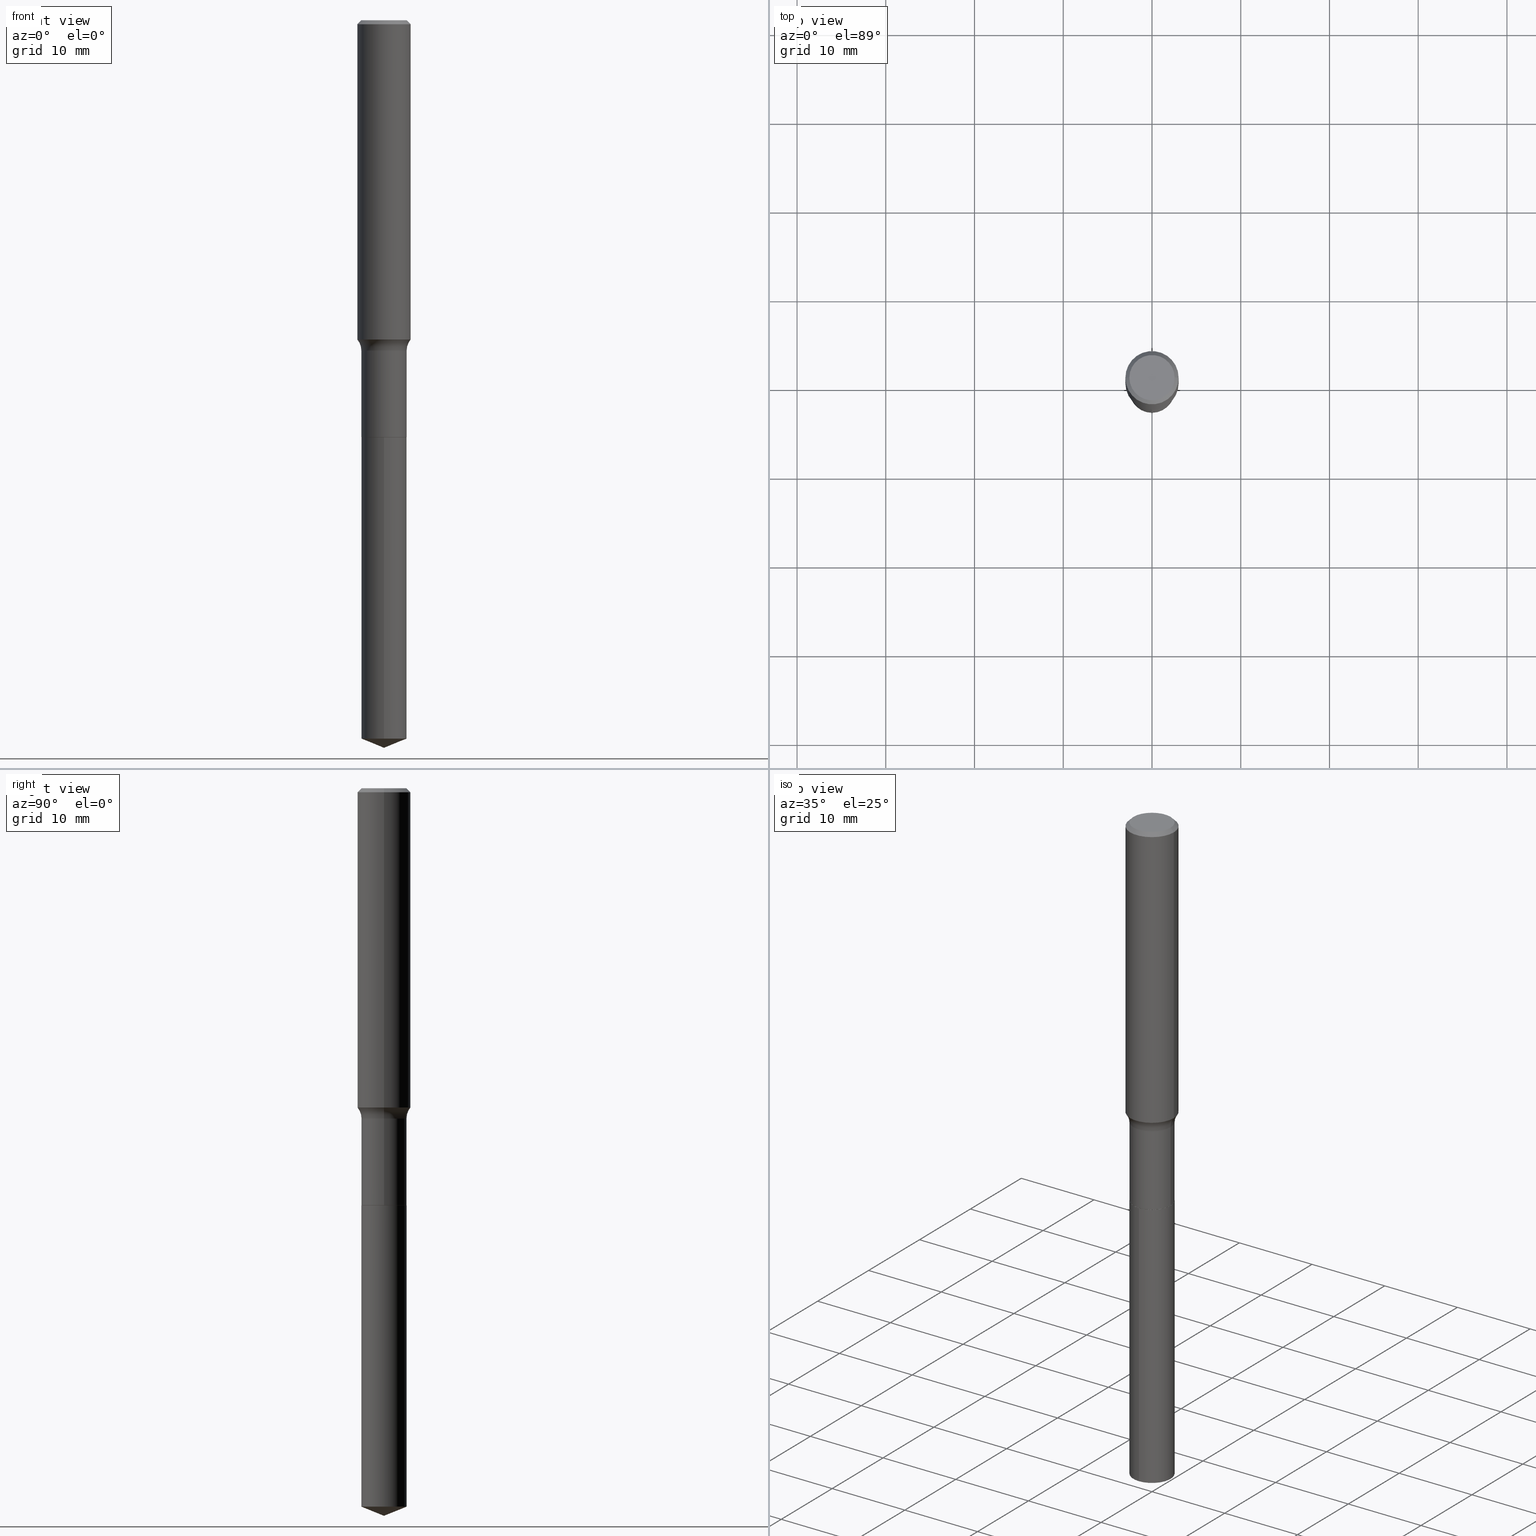
[diagram: canonical four-view strip — front | top / right | iso, engineering-drawing reading convention]
A machine part, canonical four-view strip (front | top / right | iso — engineering-drawing reading convention). The complete STEP part file that produces these views, byte-faithful:
ISO-10303-21;
HEADER;
FILE_DESCRIPTION (( 'STEP AP203' ),
    '1' );
FILE_NAME ('69244.STEP',
    '2024-04-19T17:29:57',
    ( '' ),
    ( '' ),
    'SwSTEP 2.0',
    'SolidWorks 2023',
    '' );
FILE_SCHEMA (( 'CONFIG_CONTROL_DESIGN' ));
ENDSEC;

DATA;
#1 = CONICAL_SURFACE ( 'NONE', #172, 0.09990000000000000269, 0.7853981633975336552 ) ;
#2 = FACE_OUTER_BOUND ( 'NONE', #245, .T. ) ;
#3 = CIRCLE ( 'NONE', #365, 0.1003999999999999893 ) ;
#4 = LOCAL_TIME ( 13, 29, 57.00000000000000000, #120 ) ;
#5 = VERTEX_POINT ( 'NONE', #77 ) ;
#6 = EDGE_CURVE ( 'NONE', #83, #490, #84, .T. ) ;
#7 = PRODUCT_RELATED_PRODUCT_CATEGORY ( 'detail', '', ( #463 ) ) ;
#8 = DIRECTION ( 'NONE',  ( -2.445461531359386965E-29, 3.491491756807676678E-15, 1.000000000000000000 ) ) ;
#10 = VERTEX_POINT ( 'NONE', #20 ) ;
#9 = CARTESIAN_POINT ( 'NONE',  ( 0.000000000000000000, 0.000000000000000000, 0.000000000000000000 ) ) ;
#11 = CARTESIAN_POINT ( 'NONE',  ( 5.011033706304132718E-46, -7.154428071060963220E-32, -2.049109640503330010E-17 ) ) ;
#12 = ADVANCED_BREP_SHAPE_REPRESENTATION ( '69244', ( #126, #462, #461 ), #295 ) ;
#13 = ADVANCED_FACE ( 'NONE', ( #269 ), #1, .T. ) ;
#14 = DIRECTION ( 'NONE',  ( -6.982962677686266711E-15, -1.000000000000000000, 5.441928274231599754E-15 ) ) ;
#15 = VECTOR ( 'NONE', #234, 39.37007874015748143 ) ;
#16 = AXIS2_PLACEMENT_3D ( 'NONE', #94, #34, #484 ) ;
#17 = CARTESIAN_POINT ( 'NONE',  ( -8.838404976398942388E-28, 1.261897892683881978E-13, 36.14207874015747990 ) ) ;
#18 = CARTESIAN_POINT ( 'NONE',  ( 4.524117291442502816E-29, -6.459240476859820373E-15, -1.850000000000000311 ) ) ;
#19 = CYLINDRICAL_SURFACE ( 'NONE', #415, 0.1004000000000000031 ) ;
#20 = CARTESIAN_POINT ( 'NONE',  ( -7.010894528396559145E-16, -0.1004000000000064563, -1.849999999999999867 ) ) ;
#21 = ADVANCED_FACE ( 'NONE', ( #309 ), #158, .F. ) ;
#22 = APPROVAL_STATUS ( 'not_yet_approved' ) ;
#23 = ORIENTED_EDGE ( 'NONE', *, *, #71, .F. ) ;
#24 = CARTESIAN_POINT ( 'NONE',  ( 4.332147990156998495E-31, -6.185159191760672860E-17, -0.01771500000000011607 ) ) ;
#25 = APPROVAL_STATUS ( 'not_yet_approved' ) ;
#26 = CARTESIAN_POINT ( 'NONE',  ( 4.524117291442502816E-29, -6.459240476859820373E-15, -1.850000000000000311 ) ) ;
#27 = CARTESIAN_POINT ( 'NONE',  ( -0.1003999999999999615, -5.074443708697142375E-15, -1.465899999999999981 ) ) ;
#28 = ORIENTED_EDGE ( 'NONE', *, *, #348, .F. ) ;
#29 = CARTESIAN_POINT ( 'NONE',  ( 0.1180999999999999966, -8.865394841523548556E-16, -0.01771500000000011607 ) ) ;
#30 = CC_DESIGN_PERSON_AND_ORGANIZATION_ASSIGNMENT ( #140, #259, ( #463 ) ) ;
#31 = CARTESIAN_POINT ( 'NONE',  ( -0.1003999999999999893, -5.074443708697142375E-15, -1.849500000000000366 ) ) ;
#32 = CC_DESIGN_SECURITY_CLASSIFICATION ( #176, ( #470 ) ) ;
#33 = ORIENTED_EDGE ( 'NONE', *, *, #141, .F. ) ;
#34 = DIRECTION ( 'NONE',  ( -2.445468806185136597E-29, 3.491481338843145583E-15, 1.000000000000000000 ) ) ;
#36 = ORIENTED_EDGE ( 'NONE', *, *, #92, .F. ) ;
#35 = DIRECTION ( 'NONE',  ( 1.000000000000000000, -6.982962677686265922E-15, 4.876176775795935793E-29 ) ) ;
#37 = DIRECTION ( 'NONE',  ( -6.982962677686266711E-15, -1.000000000000000000, 3.498761904101788509E-15 ) ) ;
#38 = CONICAL_SURFACE ( 'NONE', #45, 97.44436430772951496, 1.186823891356148852 ) ;
#39 = ADVANCED_FACE ( 'NONE', ( #427 ), #38, .T. ) ;
#40 = CIRCLE ( 'NONE', #344, 0.07799999999999999989 ) ;
#41 = CYLINDRICAL_SURFACE ( 'NONE', #305, 0.1003999999999999754 ) ;
#42 = EDGE_LOOP ( 'NONE', ( #278, #400, #23, #358 ) ) ;
#43 = DIRECTION ( 'NONE',  ( 1.000000000000000000, -6.982962677686265133E-15, 0.000000000000000000 ) ) ;
#44 = DIRECTION ( 'NONE',  ( 1.000000000000000000, -6.982962677686266711E-15, 4.875668750515085695E-29 ) ) ;
#45 = AXIS2_PLACEMENT_3D ( 'NONE', #17, #267, #468 ) ;
#46 = AXIS2_PLACEMENT_3D ( 'NONE', #101, #382, #154 ) ;
#47 = DIRECTION ( 'NONE',  ( -2.445468806185136597E-29, 3.491481338843145583E-15, 1.000000000000000000 ) ) ;
#48 = EDGE_CURVE ( 'NONE', #239, #183, #388, .T. ) ;
#49 = AXIS2_PLACEMENT_3D ( 'NONE', #397, #60, #240 ) ;
#50 = DIRECTION ( 'NONE',  ( 1.000000000000000000, -6.982962677686270655E-15, 0.000000000000000000 ) ) ;
#51 = DIRECTION ( 'NONE',  ( -0.7071067811866078578, 7.493145998870571886E-15, 0.7071067811864871766 ) ) ;
#52 = VERTEX_POINT ( 'NONE', #394 ) ;
#53 = EDGE_CURVE ( 'NONE', #183, #325, #300, .T. ) ;
#54 = DATE_AND_TIME ( #244, #109 ) ;
#55 = EDGE_LOOP ( 'NONE', ( #236, #431, #410, #330 ) ) ;
#56 = DIRECTION ( 'NONE',  ( -2.445461531359386965E-29, 3.491491756807676678E-15, 1.000000000000000000 ) ) ;
#57 = CIRCLE ( 'NONE', #375, 0.1003999999999999893 ) ;
#58 = AXIS2_PLACEMENT_3D ( 'NONE', #26, #279, #435 ) ;
#59 = DATE_AND_TIME ( #352, #145 ) ;
#60 = DIRECTION ( 'NONE',  ( -2.445468806185136597E-29, 3.491481338843145583E-15, 1.000000000000000000 ) ) ;
#61 = PERSON_AND_ORGANIZATION ( #458, #115 ) ;
#62 = ORIENTED_EDGE ( 'NONE', *, *, #348, .T. ) ;
#63 = DIRECTION ( 'NONE',  ( 0.7071067811866078578, -2.468850131082888544E-15, 0.7071067811864871766 ) ) ;
#64 = ORIENTED_EDGE ( 'NONE', *, *, #156, .T. ) ;
#65 = DIRECTION ( 'NONE',  ( 6.588037525764800757E-15, 0.9271838545667904219, 0.3746065934159043542 ) ) ;
#66 = CONICAL_SURFACE ( 'NONE', #241, 0.09990000000000000269, 0.7853981633975336552 ) ;
#67 = DIRECTION ( 'NONE',  ( 1.000000000000000000, -6.982962677686266711E-15, 0.000000000000000000 ) ) ;
#68 = ORIENTED_EDGE ( 'NONE', *, *, #102, .T. ) ;
#69 = CARTESIAN_POINT ( 'NONE',  ( 7.133849067031857711E-16, 0.1003999999999935500, -1.850000000000000533 ) ) ;
#70 = LINE ( 'NONE', #104, #225 ) ;
#71 = EDGE_CURVE ( 'NONE', #275, #490, #57, .T. ) ;
#72 = EDGE_LOOP ( 'NONE', ( #440, #75, #206, #331 ) ) ;
#73 = AXIS2_PLACEMENT_3D ( 'NONE', #314, #112, #424 ) ;
#74 = VECTOR ( 'NONE', #88, 39.37007874015748143 ) ;
#75 = ORIENTED_EDGE ( 'NONE', *, *, #467, .F. ) ;
#76 = CARTESIAN_POINT ( 'NONE',  ( 0.1003999999999999615, -5.819251947449867977E-15, -1.465899999999999981 ) ) ;
#77 = CARTESIAN_POINT ( 'NONE',  ( 0.09990000000000000269, -7.156838448360678443E-15, -1.850000000000000311 ) ) ;
#78 = EDGE_CURVE ( 'NONE', #293, #239, #280, .T. ) ;
#79 = CC_DESIGN_PERSON_AND_ORGANIZATION_ASSIGNMENT ( #404, #355, ( #470 ) ) ;
#80 = AXIS2_PLACEMENT_3D ( 'NONE', #466, #118, #465 ) ;
#81 = CONICAL_SURFACE ( 'NONE', #422, 0.1180999999999999966, 0.7853981633974452814 ) ;
#82 = DATE_AND_TIME ( #360, #4 ) ;
#83 = VERTEX_POINT ( 'NONE', #203 ) ;
#84 = LINE ( 'NONE', #353, #420 ) ;
#85 = ADVANCED_FACE ( 'NONE', ( #272 ), #19, .T. ) ;
#86 = DIRECTION ( 'NONE',  ( 1.000000000000000000, -6.982962677686265133E-15, 0.000000000000000000 ) ) ;
#87 = APPROVAL_ROLE ( '' ) ;
#88 = DIRECTION ( 'NONE',  ( -2.445468806185136877E-29, 3.491481338843145188E-15, 1.000000000000000000 ) ) ;
#89 = CC_DESIGN_DATE_AND_TIME_ASSIGNMENT ( #122, #407, ( #343 ) ) ;
#90 = EDGE_LOOP ( 'NONE', ( #478, #33 ) ) ;
#91 = CARTESIAN_POINT ( 'NONE',  ( 7.794765010124543835E-29, -1.112888643234222814E-14, -3.187435766926150826 ) ) ;
#92 = EDGE_CURVE ( 'NONE', #239, #285, #322, .T. ) ;
#93 = ORIENTED_EDGE ( 'NONE', *, *, #185, .T. ) ;
#94 = CARTESIAN_POINT ( 'NONE',  ( 3.584812722986791865E-29, -5.118162494610166900E-15, -1.465899999999999981 ) ) ;
#95 = DIRECTION ( 'NONE',  ( -2.445468806185136597E-29, 3.491481338843145583E-15, 1.000000000000000000 ) ) ;
#96 = EDGE_LOOP ( 'NONE', ( #263, #123, #28 ) ) ;
#97 = DIRECTION ( 'NONE',  ( 1.000000000000000000, -6.982962677686263555E-15, 0.000000000000000000 ) ) ;
#98 = APPROVAL_PERSON_ORGANIZATION ( #202, #416, #475 ) ;
#99 = DIRECTION ( 'NONE',  ( -2.445468806185136597E-29, 3.491481338843145583E-15, 1.000000000000000000 ) ) ;
#100 = EDGE_CURVE ( 'NONE', #285, #378, #132, .T. ) ;
#101 = CARTESIAN_POINT ( 'NONE',  ( 4.332147990156998495E-31, -6.185159191760672860E-17, -0.01771500000000011607 ) ) ;
#102 = EDGE_CURVE ( 'NONE', #408, #10, #390, .T. ) ;
#103 = EDGE_CURVE ( 'NONE', #356, #393, #389, .T. ) ;
#105 = ORIENTED_EDGE ( 'NONE', *, *, #100, .T. ) ;
#104 = CARTESIAN_POINT ( 'NONE',  ( -0.1003999999999999754, 7.133849067031404116E-16, -4.938610830615923592E-30 ) ) ;
#106 = FACE_OUTER_BOUND ( 'NONE', #257, .T. ) ;
#107 = ORIENTED_EDGE ( 'NONE', *, *, #185, .F. ) ;
#108 = AXIS2_PLACEMENT_3D ( 'NONE', #231, #429, #50 ) ;
#109 = LOCAL_TIME ( 13, 29, 57.00000000000000000, #395 ) ;
#110 = EDGE_CURVE ( 'NONE', #393, #408, #370, .T. ) ;
#111 = EDGE_CURVE ( 'NONE', #275, #285, #173, .T. ) ;
#112 = DIRECTION ( 'NONE',  ( -2.445468806185136597E-29, 3.491481338843145583E-15, 1.000000000000000000 ) ) ;
#113 = DIRECTION ( 'NONE',  ( 2.438088387897960049E-29, -3.491481338843145188E-15, -1.000000000000000000 ) ) ;
#114 = AXIS2_PLACEMENT_3D ( 'NONE', #282, #166, #276 ) ;
#115 = ORGANIZATION ( 'UNSPECIFIED', 'UNSPECIFIED', '' ) ;
#116 = ADVANCED_FACE ( 'NONE', ( #220 ), #143, .F. ) ;
#117 = DIRECTION ( 'NONE',  ( 1.000000000000000000, -6.982962677686263555E-15, 0.000000000000000000 ) ) ;
#118 = DIRECTION ( 'NONE',  ( -2.445468806185136597E-29, 3.491481338843145583E-15, 1.000000000000000000 ) ) ;
#119 = APPLICATION_CONTEXT ( 'configuration controlled 3d designs of mechanical parts and assemblies' ) ;
#120 = COORDINATED_UNIVERSAL_TIME_OFFSET ( 5, 0, .BEHIND. ) ;
#121 = AXIS2_PLACEMENT_3D ( 'NONE', #425, #113, #383 ) ;
#122 = DATE_AND_TIME ( #167, #152 ) ;
#123 = ORIENTED_EDGE ( 'NONE', *, *, #454, .T. ) ;
#124 = ADVANCED_FACE ( 'NONE', ( #317 ), #125, .T. ) ;
#125 = CYLINDRICAL_SURFACE ( 'NONE', #49, 0.1181000000000001077 ) ;
#126 = MANIFOLD_SOLID_BREP ( 'Body-Move/Copy2[1]', #252 ) ;
#127 = ORIENTED_EDGE ( 'NONE', *, *, #111, .T. ) ;
#128 = CARTESIAN_POINT ( 'NONE',  ( 4.524117291442502816E-29, -6.459240476859820373E-15, -1.850000000000000311 ) ) ;
#129 = APPROVAL_DATE_TIME ( #205, #416 ) ;
#130 = EDGE_LOOP ( 'NONE', ( #319, #313 ) ) ;
#131 = DIRECTION ( 'NONE',  ( -2.445468806185136877E-29, 3.491481338843145188E-15, 1.000000000000000000 ) ) ;
#132 = CIRCLE ( 'NONE', #199, 0.1003999999999999615 ) ;
#133 = AXIS2_PLACEMENT_3D ( 'NONE', #485, #146, #406 ) ;
#134 = CARTESIAN_POINT ( 'NONE',  ( 3.463819832877476296E-29, -4.945416713972557188E-15, -1.416423642009541295 ) ) ;
#135 = ORIENTED_EDGE ( 'NONE', *, *, #195, .F. ) ;
#136 = FACE_OUTER_BOUND ( 'NONE', #72, .T. ) ;
#137 = DIRECTION ( 'NONE',  ( 1.000000000000000000, -6.982962677686268288E-15, 0.000000000000000000 ) ) ;
#138 = EDGE_LOOP ( 'NONE', ( #434, #93, #299, #165 ) ) ;
#139 = LINE ( 'NONE', #444, #74 ) ;
#140 = PERSON_AND_ORGANIZATION ( #458, #115 ) ;
#141 = EDGE_CURVE ( 'NONE', #83, #5, #417, .T. ) ;
#142 = CARTESIAN_POINT ( 'NONE',  ( 0.1003850000000000159, -7.803837484803599345E-16, -2.049109640502812012E-17 ) ) ;
#143 = TOROIDAL_SURFACE ( 'NONE', #16, 0.1783999999999999198, 0.07799999999999999989 ) ;
#144 = PLANE ( 'NONE',  #175 ) ;
#145 = LOCAL_TIME ( 13, 29, 57.00000000000000000, #399 ) ;
#146 = DIRECTION ( 'NONE',  ( -2.445461531359386965E-29, 3.491491756807676678E-15, 1.000000000000000000 ) ) ;
#147 = CARTESIAN_POINT ( 'NONE',  ( 7.893949823228101687E-29, -1.127053539097518232E-14, -3.228000000000000203 ) ) ;
#148 = CARTESIAN_POINT ( 'NONE',  ( 3.584812722986791865E-29, -5.118162494610166900E-15, -1.465899999999999981 ) ) ;
#150 = EDGE_LOOP ( 'NONE', ( #450, #366, #260, #105 ) ) ;
#149 = APPLICATION_PROTOCOL_DEFINITION ( 'international standard', 'config_control_design', 1994, #402 ) ;
#151 = AXIS2_PLACEMENT_3D ( 'NONE', #11, #380, #44 ) ;
#152 = LOCAL_TIME ( 13, 29, 57.00000000000000000, #235 ) ;
#153 = DIRECTION ( 'NONE',  ( 1.000000000000000000, -6.982962677686266711E-15, 4.876176775795935232E-29 ) ) ;
#154 = DIRECTION ( 'NONE',  ( -1.000000000000000000, 6.982962677686266711E-15, 0.000000000000000000 ) ) ;
#155 = DIRECTION ( 'NONE',  ( -2.445468806185136597E-29, 3.491481338843145583E-15, 1.000000000000000000 ) ) ;
#156 = EDGE_CURVE ( 'NONE', #242, #183, #361, .T. ) ;
#157 = CARTESIAN_POINT ( 'NONE',  ( -7.010894528396231768E-16, -0.1004000000000111331, -3.187435766926150382 ) ) ;
#158 = TOROIDAL_SURFACE ( 'NONE', #261, 0.1783999999999999198, 0.07799999999999999989 ) ;
#159 = CIRCLE ( 'NONE', #271, 0.1180999999999999966 ) ;
#160 = DIRECTION ( 'NONE',  ( -2.445468806185136597E-29, 3.491481338843145583E-15, 1.000000000000000000 ) ) ;
#161 = VECTOR ( 'NONE', #371, 39.37007874015748143 ) ;
#162 = ORIENTED_EDGE ( 'NONE', *, *, #373, .T. ) ;
#163 = ADVANCED_FACE ( 'NONE', ( #209 ), #438, .T. ) ;
#164 = PERSON_AND_ORGANIZATION ( #458, #115 ) ;
#165 = ORIENTED_EDGE ( 'NONE', *, *, #48, .F. ) ;
#166 = DIRECTION ( 'NONE',  ( -2.445468806185136597E-29, 3.491481338843145583E-15, 1.000000000000000000 ) ) ;
#167 = CALENDAR_DATE ( 2024, 19, 4 ) ;
#168 = LINE ( 'NONE', #432, #376 ) ;
#169 = ADVANCED_FACE ( 'NONE', ( #136 ), #81, .T. ) ;
#170 = PLANE ( 'NONE',  #464 ) ;
#171 = ORIENTED_EDGE ( 'NONE', *, *, #258, .T. ) ;
#172 = AXIS2_PLACEMENT_3D ( 'NONE', #237, #160, #307 ) ;
#173 = LINE ( 'NONE', #409, #262 ) ;
#174 = AXIS2_PLACEMENT_3D ( 'NONE', #186, #286, #327 ) ;
#175 = AXIS2_PLACEMENT_3D ( 'NONE', #336, #329, #35 ) ;
#176 = SECURITY_CLASSIFICATION ( '', '', #430 ) ;
#177 = LINE ( 'NONE', #339, #189 ) ;
#179 = ORIENTED_EDGE ( 'NONE', *, *, #6, .F. ) ;
#178 = APPLICATION_PROTOCOL_DEFINITION ( 'international standard', 'config_control_design', 1994, #119 ) ;
#180 = ORIENTED_EDGE ( 'NONE', *, *, #454, .F. ) ;
#181 = DIRECTION ( 'NONE',  ( 0.7071067811865453523, -7.319954787623248157E-15, -0.7071067811865496822 ) ) ;
#182 = ADVANCED_FACE ( 'NONE', ( #213 ), #66, .T. ) ;
#183 = VERTEX_POINT ( 'NONE', #29 ) ;
#184 = EDGE_CURVE ( 'NONE', #5, #83, #460, .T. ) ;
#185 = EDGE_CURVE ( 'NONE', #293, #325, #139, .T. ) ;
#186 = CARTESIAN_POINT ( 'NONE',  ( 4.524117291442502816E-29, -6.459240476859820373E-15, -1.850000000000000311 ) ) ;
#187 = CARTESIAN_POINT ( 'NONE',  ( 7.133849067032188047E-16, 0.1003999999999935500, -1.850000000000000533 ) ) ;
#188 = ORIENTED_EDGE ( 'NONE', *, *, #141, .T. ) ;
#189 = VECTOR ( 'NONE', #445, 39.37007874015748143 ) ;
#190 = DIRECTION ( 'NONE',  ( 1.000000000000000000, 0.000000000000000000, 0.000000000000000000 ) ) ;
#191 = EDGE_CURVE ( 'NONE', #5, #275, #332, .T. ) ;
#192 = FACE_OUTER_BOUND ( 'NONE', #289, .T. ) ;
#193 = CARTESIAN_POINT ( 'NONE',  ( 0.000000000000000000, 0.000000000000000000, 0.000000000000000000 ) ) ;
#194 = VECTOR ( 'NONE', #216, 39.37007874015748143 ) ;
#195 = EDGE_CURVE ( 'NONE', #476, #325, #401, .T. ) ;
#196 = EDGE_CURVE ( 'NONE', #52, #393, #168, .T. ) ;
#197 = FACE_OUTER_BOUND ( 'NONE', #55, .T. ) ;
#198 = DIRECTION ( 'NONE',  ( 1.000000000000000000, -6.982962677686265922E-15, 4.883557194083112901E-29 ) ) ;
#199 = AXIS2_PLACEMENT_3D ( 'NONE', #201, #351, #86 ) ;
#200 = AXIS2_PLACEMENT_3D ( 'NONE', #447, #56, #37 ) ;
#201 = CARTESIAN_POINT ( 'NONE',  ( 3.584812722986791865E-29, -5.118162494610166900E-15, -1.465899999999999981 ) ) ;
#202 = PERSON_AND_ORGANIZATION ( #458, #115 ) ;
#203 = CARTESIAN_POINT ( 'NONE',  ( -0.09990000000000000269, -5.746759056661369166E-15, -1.850000000000000311 ) ) ;
#204 = CC_DESIGN_PERSON_AND_ORGANIZATION_ASSIGNMENT ( #238, #277, ( #176 ) ) ;
#205 = DATE_AND_TIME ( #312, #311 ) ;
#206 = ORIENTED_EDGE ( 'NONE', *, *, #195, .T. ) ;
#207 = CONICAL_SURFACE ( 'NONE', #46, 0.1180999999999999966, 0.7853981633974452814 ) ;
#208 = CC_DESIGN_APPROVAL ( #250, ( #343 ) ) ;
#209 = FACE_OUTER_BOUND ( 'NONE', #96, .T. ) ;
#210 = SHAPE_DEFINITION_REPRESENTATION ( #303, #12 ) ;
#211 = ORIENTED_EDGE ( 'NONE', *, *, #102, .F. ) ;
#212 = EDGE_CURVE ( 'NONE', #10, #408, #459, .T. ) ;
#213 = FACE_OUTER_BOUND ( 'NONE', #248, .T. ) ;
#214 = APPROVAL_DATE_TIME ( #59, #298 ) ;
#215 = ORIENTED_EDGE ( 'NONE', *, *, #103, .T. ) ;
#216 = DIRECTION ( 'NONE',  ( -0.7071067811865453523, 2.468850131082234184E-15, -0.7071067811865496822 ) ) ;
#217 = ORIENTED_EDGE ( 'NONE', *, *, #212, .T. ) ;
#218 = DIRECTION ( 'NONE',  ( -2.445461531359386965E-29, 3.491491756807676678E-15, 1.000000000000000000 ) ) ;
#219 = AXIS2_PLACEMENT_3D ( 'NONE', #320, #218, #367 ) ;
#220 = FACE_OUTER_BOUND ( 'NONE', #341, .T. ) ;
#221 = FACE_OUTER_BOUND ( 'NONE', #90, .T. ) ;
#223 = ORIENTED_EDGE ( 'NONE', *, *, #226, .F. ) ;
#222 = CYLINDRICAL_SURFACE ( 'NONE', #133, 0.1004000000000000031 ) ;
#224 = ORIENTED_EDGE ( 'NONE', *, *, #384, .F. ) ;
#225 = VECTOR ( 'NONE', #412, 39.37007874015748143 ) ;
#226 = EDGE_CURVE ( 'NONE', #490, #275, #3, .T. ) ;
#227 = DESIGN_CONTEXT ( 'detailed design', #402, 'design' ) ;
#228 = CARTESIAN_POINT ( 'NONE',  ( 0.000000000000000000, 0.000000000000000000, 0.000000000000000000 ) ) ;
#229 = CARTESIAN_POINT ( 'NONE',  ( -0.1180999999999999966, -1.664483182012402116E-15, -0.01771500000000011607 ) ) ;
#230 = AXIS2_PLACEMENT_3D ( 'NONE', #335, #291, #448 ) ;
#231 = CARTESIAN_POINT ( 'NONE',  ( 0.1783999999999999198, -6.363923036309396812E-15, -1.465899999999999981 ) ) ;
#232 = AXIS2_PLACEMENT_3D ( 'NONE', #228, #302, #264 ) ;
#233 = APPROVAL_PERSON_ORGANIZATION ( #61, #298, #87 ) ;
#234 = DIRECTION ( 'NONE',  ( -2.445468806185136877E-29, 3.491481338843145188E-15, 1.000000000000000000 ) ) ;
#235 = COORDINATED_UNIVERSAL_TIME_OFFSET ( 5, 0, .BEHIND. ) ;
#236 = ORIENTED_EDGE ( 'NONE', *, *, #71, .T. ) ;
#237 = CARTESIAN_POINT ( 'NONE',  ( 4.524117291442502816E-29, -6.459240476859820373E-15, -1.850000000000000311 ) ) ;
#238 = PERSON_AND_ORGANIZATION ( #458, #115 ) ;
#239 = VERTEX_POINT ( 'NONE', #253 ) ;
#240 = DIRECTION ( 'NONE',  ( 1.000000000000000000, -6.982962677686266711E-15, 4.876176775795935793E-29 ) ) ;
#241 = AXIS2_PLACEMENT_3D ( 'NONE', #128, #246, #473 ) ;
#242 = VERTEX_POINT ( 'NONE', #142 ) ;
#243 = CARTESIAN_POINT ( 'NONE',  ( 0.09990000000000000269, -7.156838448360678443E-15, -1.850000000000000311 ) ) ;
#244 = CALENDAR_DATE ( 2024, 19, 4 ) ;
#245 = EDGE_LOOP ( 'NONE', ( #453, #62, #418, #211 ) ) ;
#246 = DIRECTION ( 'NONE',  ( -2.445468806185136597E-29, 3.491481338843145583E-15, 1.000000000000000000 ) ) ;
#247 = PERSON_AND_ORGANIZATION_ROLE ( 'creator' ) ;
#248 = EDGE_LOOP ( 'NONE', ( #179, #188, #372, #223 ) ) ;
#249 = DIRECTION ( 'NONE',  ( 2.445468806185136597E-29, -3.491481338843145583E-15, -1.000000000000000000 ) ) ;
#250 = APPROVAL ( #22, 'UNSPECIFIED' ) ;
#251 =( NAMED_UNIT ( * ) PLANE_ANGLE_UNIT ( ) SI_UNIT ( $, .RADIAN. ) );
#252 = CLOSED_SHELL ( 'NONE', ( #85, #39, #163, #474, #386 ) ) ;
#253 = CARTESIAN_POINT ( 'NONE',  ( 0.1181000000000002187, -5.770104606207307029E-15, -1.416423642009541295 ) ) ;
#254 = AXIS2_PLACEMENT_3D ( 'NONE', #134, #283, #137 ) ;
#255 = EDGE_LOOP ( 'NONE', ( #288, #64, #316, #135 ) ) ;
#257 = EDGE_LOOP ( 'NONE', ( #217, #68 ) ) ;
#256 = DIRECTION ( 'NONE',  ( 1.000000000000000000, -6.982962677686266711E-15, 4.875668750515085695E-29 ) ) ;
#258 = EDGE_CURVE ( 'NONE', #293, #378, #40, .T. ) ;
#260 = ORIENTED_EDGE ( 'NONE', *, *, #92, .T. ) ;
#259 = PERSON_AND_ORGANIZATION_ROLE ( 'design_owner' ) ;
#261 = AXIS2_PLACEMENT_3D ( 'NONE', #265, #155, #198 ) ;
#262 = VECTOR ( 'NONE', #131, 39.37007874015748143 ) ;
#263 = ORIENTED_EDGE ( 'NONE', *, *, #196, .F. ) ;
#264 = DIRECTION ( 'NONE',  ( 1.000000000000000000, -6.982962677686266711E-15, 4.876176775795935793E-29 ) ) ;
#265 = CARTESIAN_POINT ( 'NONE',  ( 3.584812722986791865E-29, -5.118162494610166900E-15, -1.465899999999999981 ) ) ;
#266 = CIRCLE ( 'NONE', #151, 0.1003850000000000159 ) ;
#267 = DIRECTION ( 'NONE',  ( -2.445461531359386965E-29, 3.491491756807676678E-15, 1.000000000000000000 ) ) ;
#268 = CYLINDRICAL_SURFACE ( 'NONE', #232, 0.1181000000000001077 ) ;
#269 = FACE_OUTER_BOUND ( 'NONE', #42, .T. ) ;
#270 = ADVANCED_FACE ( 'NONE', ( #491 ), #207, .T. ) ;
#271 = AXIS2_PLACEMENT_3D ( 'NONE', #333, #95, #67 ) ;
#272 = FACE_OUTER_BOUND ( 'NONE', #340, .T. ) ;
#273 = ADVANCED_FACE ( 'NONE', ( #192 ), #268, .T. ) ;
#274 = PERSON_AND_ORGANIZATION ( #458, #115 ) ;
#275 = VERTEX_POINT ( 'NONE', #381 ) ;
#276 = DIRECTION ( 'NONE',  ( 1.000000000000000000, -6.982962677686267499E-15, 0.000000000000000000 ) ) ;
#277 = PERSON_AND_ORGANIZATION_ROLE ( 'classification_officer' ) ;
#278 = ORIENTED_EDGE ( 'NONE', *, *, #184, .T. ) ;
#279 = DIRECTION ( 'NONE',  ( -2.445468806185136597E-29, 3.491481338843145583E-15, 1.000000000000000000 ) ) ;
#280 = CIRCLE ( 'NONE', #73, 0.1181000000000002048 ) ;
#281 = VECTOR ( 'NONE', #405, 39.37007874015748143 ) ;
#282 = CARTESIAN_POINT ( 'NONE',  ( 4.524117291442502816E-29, -6.459240476859820373E-15, -1.850000000000000311 ) ) ;
#283 = DIRECTION ( 'NONE',  ( -2.445468806185136597E-29, 3.491481338843145583E-15, 1.000000000000000000 ) ) ;
#284 = ADVANCED_FACE ( 'NONE', ( #301 ), #423, .F. ) ;
#285 = VERTEX_POINT ( 'NONE', #76 ) ;
#286 = DIRECTION ( 'NONE',  ( -2.445461531359386965E-29, 3.491491756807676678E-15, 1.000000000000000000 ) ) ;
#287 = DIRECTION ( 'NONE',  ( 6.982962677686265922E-15, 1.000000000000000000, -3.491491756807676678E-15 ) ) ;
#288 = ORIENTED_EDGE ( 'NONE', *, *, #297, .F. ) ;
#289 = EDGE_LOOP ( 'NONE', ( #107, #487, #337, #369 ) ) ;
#290 = DIRECTION ( 'NONE',  ( -2.445468806185136597E-29, 3.491481338843145583E-15, 1.000000000000000000 ) ) ;
#291 = DIRECTION ( 'NONE',  ( -2.445468806185136597E-29, 3.491481338843145583E-15, 1.000000000000000000 ) ) ;
#293 = VERTEX_POINT ( 'NONE', #342 ) ;
#292 = LINE ( 'NONE', #147, #161 ) ;
#294 = DIRECTION ( 'NONE',  ( 7.105427357601001859E-15, 1.000000000000000000, -3.491481338843145583E-15 ) ) ;
#295 =( GEOMETRIC_REPRESENTATION_CONTEXT ( 3 ) GLOBAL_UNCERTAINTY_ASSIGNED_CONTEXT ( ( #354 ) ) GLOBAL_UNIT_ASSIGNED_CONTEXT ( ( #296, #251, #452 ) ) REPRESENTATION_CONTEXT ( 'NONE', 'WORKASPACE' ) );
#296 =( CONVERSION_BASED_UNIT ( 'INCH', #446 ) LENGTH_UNIT ( ) NAMED_UNIT ( #419 ) );
#297 = EDGE_CURVE ( 'NONE', #242, #476, #266, .T. ) ;
#298 = APPROVAL ( #433, 'UNSPECIFIED' ) ;
#299 = ORIENTED_EDGE ( 'NONE', *, *, #53, .F. ) ;
#300 = CIRCLE ( 'NONE', #80, 0.1180999999999999966 ) ;
#301 = FACE_OUTER_BOUND ( 'NONE', #130, .T. ) ;
#302 = DIRECTION ( 'NONE',  ( -2.445468806185136597E-29, 3.491481338843145583E-15, 1.000000000000000000 ) ) ;
#303 = PRODUCT_DEFINITION_SHAPE ( 'NONE', 'NONE',  #343 ) ;
#304 = CARTESIAN_POINT ( 'NONE',  ( 0.1181000000000001077, -8.246878922347488542E-16, 5.758764772215005345E-30 ) ) ;
#305 = AXIS2_PLACEMENT_3D ( 'NONE', #193, #345, #153 ) ;
#306 = ADVANCED_FACE ( 'NONE', ( #197 ), #41, .T. ) ;
#307 = DIRECTION ( 'NONE',  ( 1.000000000000000000, -6.982962677686267499E-15, 0.000000000000000000 ) ) ;
#308 = APPROVAL_ROLE ( '' ) ;
#309 = FACE_OUTER_BOUND ( 'NONE', #150, .T. ) ;
#310 = AXIS2_PLACEMENT_3D ( 'NONE', #449, #99, #256 ) ;
#311 = LOCAL_TIME ( 13, 29, 57.00000000000000000, #318 ) ;
#312 = CALENDAR_DATE ( 2024, 19, 4 ) ;
#313 = ORIENTED_EDGE ( 'NONE', *, *, #297, .T. ) ;
#314 = CARTESIAN_POINT ( 'NONE',  ( 3.463819832877476296E-29, -4.945416713972557188E-15, -1.416423642009541295 ) ) ;
#315 = APPROVAL_DATE_TIME ( #82, #250 ) ;
#316 = ORIENTED_EDGE ( 'NONE', *, *, #53, .T. ) ;
#317 = FACE_OUTER_BOUND ( 'NONE', #138, .T. ) ;
#318 = COORDINATED_UNIVERSAL_TIME_OFFSET ( 5, 0, .BEHIND. ) ;
#319 = ORIENTED_EDGE ( 'NONE', *, *, #467, .T. ) ;
#320 = CARTESIAN_POINT ( 'NONE',  ( 4.524117291442502816E-29, -6.459240476859820373E-15, -1.850000000000000311 ) ) ;
#321 = CARTESIAN_POINT ( 'NONE',  ( 4.524117291442502816E-29, -6.459240476859820373E-15, -1.850000000000000311 ) ) ;
#322 = CIRCLE ( 'NONE', #108, 0.07799999999999999989 ) ;
#323 = PERSON_AND_ORGANIZATION ( #458, #115 ) ;
#324 = VECTOR ( 'NONE', #181, 39.37007874015748143 ) ;
#325 = VERTEX_POINT ( 'NONE', #229 ) ;
#326 = CC_DESIGN_APPROVAL ( #416, ( #470 ) ) ;
#327 = DIRECTION ( 'NONE',  ( -6.982962677686266711E-15, -1.000000000000000000, 2.720964137115799877E-15 ) ) ;
#328 = DIRECTION ( 'NONE',  ( 2.445461531359386404E-29, -3.491491756807676678E-15, -1.000000000000000000 ) ) ;
#330 = ORIENTED_EDGE ( 'NONE', *, *, #111, .F. ) ;
#329 = DIRECTION ( 'NONE',  ( -2.438088387897960049E-29, 3.491481338843145188E-15, 1.000000000000000000 ) ) ;
#331 = ORIENTED_EDGE ( 'NONE', *, *, #421, .T. ) ;
#332 = LINE ( 'NONE', #243, #391 ) ;
#333 = CARTESIAN_POINT ( 'NONE',  ( 4.332147990156998495E-31, -6.185159191760672860E-17, -0.01771500000000011607 ) ) ;
#334 = CARTESIAN_POINT ( 'NONE',  ( -0.1783999999999999198, -3.850554254014148936E-15, -1.465899999999999981 ) ) ;
#335 = CARTESIAN_POINT ( 'NONE',  ( 0.000000000000000000, 0.000000000000000000, 0.000000000000000000 ) ) ;
#337 = ORIENTED_EDGE ( 'NONE', *, *, #48, .T. ) ;
#336 = CARTESIAN_POINT ( 'NONE',  ( 4.524117291442502816E-29, -6.459240476859820373E-15, -1.850000000000000311 ) ) ;
#338 = CIRCLE ( 'NONE', #428, 0.1003999999999999615 ) ;
#339 = CARTESIAN_POINT ( 'NONE',  ( -7.010894528396559145E-16, -0.1004000000000064563, -1.849999999999999867 ) ) ;
#340 = EDGE_LOOP ( 'NONE', ( #215, #443, #483, #224 ) ) ;
#341 = EDGE_LOOP ( 'NONE', ( #413, #171, #162, #36 ) ) ;
#342 = CARTESIAN_POINT ( 'NONE',  ( -0.1181000000000002187, -4.106265743039877413E-15, -1.416423642009541295 ) ) ;
#343 = PRODUCT_DEFINITION ( 'UNKNOWN', '', #470, #227 ) ;
#344 = AXIS2_PLACEMENT_3D ( 'NONE', #334, #294, #451 ) ;
#345 = DIRECTION ( 'NONE',  ( -2.445468806185136597E-29, 3.491481338843145583E-15, 1.000000000000000000 ) ) ;
#346 = CC_DESIGN_PERSON_AND_ORGANIZATION_ASSIGNMENT ( #164, #471, ( #470 ) ) ;
#347 = CARTESIAN_POINT ( 'NONE',  ( 7.794765010124543835E-29, -1.112888643234222814E-14, -3.187435766926150826 ) ) ;
#348 = EDGE_CURVE ( 'NONE', #393, #356, #480, .T. ) ;
#349 = DIRECTION ( 'NONE',  ( -2.445461531359386965E-29, 3.491491756807676678E-15, 1.000000000000000000 ) ) ;
#350 = CIRCLE ( 'NONE', #310, 0.1003850000000000159 ) ;
#351 = DIRECTION ( 'NONE',  ( -2.445468806185136597E-29, 3.491481338843145583E-15, 1.000000000000000000 ) ) ;
#352 = CALENDAR_DATE ( 2024, 19, 4 ) ;
#353 = CARTESIAN_POINT ( 'NONE',  ( -0.09990000000000000269, -5.749408283835480367E-15, -1.850000000000000311 ) ) ;
#354 = UNCERTAINTY_MEASURE_WITH_UNIT (LENGTH_MEASURE( 1.000000000000000082E-05 ), #296, 'distance_accuracy_value', 'NONE');
#355 = PERSON_AND_ORGANIZATION_ROLE ( 'creator' ) ;
#356 = VERTEX_POINT ( 'NONE', #157 ) ;
#357 = CLOSED_SHELL ( 'NONE', ( #13, #270, #124, #116, #306, #436, #21, #273, #169, #284, #437, #182 ) ) ;
#358 = ORIENTED_EDGE ( 'NONE', *, *, #191, .F. ) ;
#359 = DIRECTION ( 'NONE',  ( -2.445461531359386965E-29, 3.491491756807676678E-15, 1.000000000000000000 ) ) ;
#360 = CALENDAR_DATE ( 2024, 19, 4 ) ;
#361 = LINE ( 'NONE', #477, #324 ) ;
#362 = EDGE_LOOP ( 'NONE', ( #374, #472, #127, #455 ) ) ;
#363 = CARTESIAN_POINT ( 'NONE',  ( -0.1180999999999999966, 7.628363003171412752E-16, -0.01771500000000011607 ) ) ;
#364 = DIRECTION ( 'NONE',  ( 0.000000000000000000, 0.000000000000000000, 1.000000000000000000 ) ) ;
#365 = AXIS2_PLACEMENT_3D ( 'NONE', #488, #290, #97 ) ;
#366 = ORIENTED_EDGE ( 'NONE', *, *, #403, .F. ) ;
#367 = DIRECTION ( 'NONE',  ( -6.982962677686266711E-15, -1.000000000000000000, 2.720964137115799877E-15 ) ) ;
#369 = ORIENTED_EDGE ( 'NONE', *, *, #421, .F. ) ;
#368 = MECHANICAL_CONTEXT ( 'NONE', #119, 'mechanical' ) ;
#370 = LINE ( 'NONE', #69, #281 ) ;
#372 = ORIENTED_EDGE ( 'NONE', *, *, #191, .T. ) ;
#371 = DIRECTION ( 'NONE',  ( -6.474490251793188884E-15, -0.9271838545667878684, 0.3746065934159108490 ) ) ;
#373 = EDGE_CURVE ( 'NONE', #378, #285, #338, .T. ) ;
#374 = ORIENTED_EDGE ( 'NONE', *, *, #439, .F. ) ;
#375 = AXIS2_PLACEMENT_3D ( 'NONE', #387, #47, #117 ) ;
#376 = VECTOR ( 'NONE', #65, 39.37007874015748854 ) ;
#378 = VERTEX_POINT ( 'NONE', #27 ) ;
#377 =( LENGTH_UNIT ( ) NAMED_UNIT ( * ) SI_UNIT ( $, .METRE. ) );
#379 = DIRECTION ( 'NONE',  ( -2.445468806185136597E-29, 3.491481338843145583E-15, 1.000000000000000000 ) ) ;
#380 = DIRECTION ( 'NONE',  ( -2.445468806185136597E-29, 3.491481338843145583E-15, 1.000000000000000000 ) ) ;
#381 = CARTESIAN_POINT ( 'NONE',  ( 0.1003999999999999893, -7.158584189030099157E-15, -1.849500000000000366 ) ) ;
#382 = DIRECTION ( 'NONE',  ( 2.445468806185136597E-29, -3.491481338843145583E-15, -1.000000000000000000 ) ) ;
#383 = DIRECTION ( 'NONE',  ( -1.000000000000000000, 6.982962677686265922E-15, -4.876176775795935793E-29 ) ) ;
#384 = EDGE_CURVE ( 'NONE', #356, #10, #177, .T. ) ;
#385 = CC_DESIGN_DATE_AND_TIME_ASSIGNMENT ( #54, #482, ( #176 ) ) ;
#386 = ADVANCED_FACE ( 'NONE', ( #106 ), #170, .F. ) ;
#387 = CARTESIAN_POINT ( 'NONE',  ( 4.522894557039411136E-29, -6.457494736190398870E-15, -1.849500000000000366 ) ) ;
#388 = LINE ( 'NONE', #304, #15 ) ;
#389 = CIRCLE ( 'NONE', #456, 0.1004000000000000031 ) ;
#390 = CIRCLE ( 'NONE', #174, 0.1004000000000000031 ) ;
#391 = VECTOR ( 'NONE', #63, 39.37007874015748143 ) ;
#392 = APPROVAL_PERSON_ORGANIZATION ( #323, #250, #308 ) ;
#393 = VERTEX_POINT ( 'NONE', #479 ) ;
#394 = CARTESIAN_POINT ( 'NONE',  ( 7.893949823228101687E-29, -1.127053539097518074E-14, -3.228000000000000203 ) ) ;
#395 = COORDINATED_UNIVERSAL_TIME_OFFSET ( 5, 0, .BEHIND. ) ;
#396 = ORIENTED_EDGE ( 'NONE', *, *, #103, .F. ) ;
#397 = CARTESIAN_POINT ( 'NONE',  ( 0.000000000000000000, 0.000000000000000000, 0.000000000000000000 ) ) ;
#398 = AXIS2_PLACEMENT_3D ( 'NONE', #347, #8, #14 ) ;
#399 = COORDINATED_UNIVERSAL_TIME_OFFSET ( 5, 0, .BEHIND. ) ;
#400 = ORIENTED_EDGE ( 'NONE', *, *, #6, .T. ) ;
#401 = LINE ( 'NONE', #363, #194 ) ;
#402 = APPLICATION_CONTEXT ( 'configuration controlled 3d designs of mechanical parts and assemblies' ) ;
#403 = EDGE_CURVE ( 'NONE', #239, #293, #469, .T. ) ;
#404 = PERSON_AND_ORGANIZATION ( #458, #115 ) ;
#405 = DIRECTION ( 'NONE',  ( -2.445461531359386965E-29, 3.491491756807676678E-15, 1.000000000000000000 ) ) ;
#406 = DIRECTION ( 'NONE',  ( -6.982962677686266711E-15, -1.000000000000000000, 2.720964137115799877E-15 ) ) ;
#407 = DATE_TIME_ROLE ( 'creation_date' ) ;
#408 = VERTEX_POINT ( 'NONE', #187 ) ;
#409 = CARTESIAN_POINT ( 'NONE',  ( 0.1003999999999999754, -7.010894528397009782E-16, 4.895681482899117754E-30 ) ) ;
#410 = ORIENTED_EDGE ( 'NONE', *, *, #100, .F. ) ;
#411 = DIRECTION ( 'NONE',  ( -1.000000000000000000, 6.982962677686266711E-15, 0.000000000000000000 ) ) ;
#412 = DIRECTION ( 'NONE',  ( -2.445468806185136877E-29, 3.491481338843145188E-15, 1.000000000000000000 ) ) ;
#413 = ORIENTED_EDGE ( 'NONE', *, *, #78, .F. ) ;
#414 = EDGE_LOOP ( 'NONE', ( #180, #486, #396 ) ) ;
#415 = AXIS2_PLACEMENT_3D ( 'NONE', #18, #349, #426 ) ;
#416 = APPROVAL ( #25, 'UNSPECIFIED' ) ;
#417 = CIRCLE ( 'NONE', #114, 0.09990000000000000269 ) ;
#418 = ORIENTED_EDGE ( 'NONE', *, *, #384, .T. ) ;
#419 = DIMENSIONAL_EXPONENTS ( 1.000000000000000000, 0.000000000000000000, 0.000000000000000000, 0.000000000000000000, 0.000000000000000000, 0.000000000000000000, 0.000000000000000000 ) ;
#420 = VECTOR ( 'NONE', #51, 39.37007874015748143 ) ;
#421 = EDGE_CURVE ( 'NONE', #325, #183, #159, .T. ) ;
#422 = AXIS2_PLACEMENT_3D ( 'NONE', #24, #249, #411 ) ;
#423 = PLANE ( 'NONE',  #121 ) ;
#424 = DIRECTION ( 'NONE',  ( 1.000000000000000000, -6.982962677686268288E-15, 0.000000000000000000 ) ) ;
#425 = CARTESIAN_POINT ( 'NONE',  ( 2.505516853152066359E-46, -3.577214035530481610E-32, -1.024554820251665005E-17 ) ) ;
#426 = DIRECTION ( 'NONE',  ( -6.982962677686266711E-15, -1.000000000000000000, 2.720964137115799877E-15 ) ) ;
#427 = FACE_OUTER_BOUND ( 'NONE', #414, .T. ) ;
#428 = AXIS2_PLACEMENT_3D ( 'NONE', #148, #379, #43 ) ;
#429 = DIRECTION ( 'NONE',  ( -6.982962677686266711E-15, -1.000000000000000000, 3.491481338843145583E-15 ) ) ;
#430 = SECURITY_CLASSIFICATION_LEVEL ( 'unclassified' ) ;
#431 = ORIENTED_EDGE ( 'NONE', *, *, #439, .T. ) ;
#432 = CARTESIAN_POINT ( 'NONE',  ( 7.893976976112422785E-29, -1.127049684450641782E-14, -3.228000000000000203 ) ) ;
#433 = APPROVAL_STATUS ( 'not_yet_approved' ) ;
#434 = ORIENTED_EDGE ( 'NONE', *, *, #403, .T. ) ;
#435 = DIRECTION ( 'NONE',  ( 1.000000000000000000, -6.982962677686267499E-15, 0.000000000000000000 ) ) ;
#436 = ADVANCED_FACE ( 'NONE', ( #492 ), #489, .T. ) ;
#437 = ADVANCED_FACE ( 'NONE', ( #221 ), #144, .F. ) ;
#438 = CONICAL_SURFACE ( 'NONE', #200, 97.44436430772951496, 1.186823891356148852 ) ;
#439 = EDGE_CURVE ( 'NONE', #490, #378, #70, .T. ) ;
#440 = ORIENTED_EDGE ( 'NONE', *, *, #156, .F. ) ;
#441 = DIRECTION ( 'NONE',  ( -6.982962677686266711E-15, -1.000000000000000000, 5.441928274231599754E-15 ) ) ;
#442 = CARTESIAN_POINT ( 'NONE',  ( -0.1003850000000000159, 7.319105043583384717E-16, -2.049109640503831060E-17 ) ) ;
#443 = ORIENTED_EDGE ( 'NONE', *, *, #110, .T. ) ;
#444 = CARTESIAN_POINT ( 'NONE',  ( -0.1181000000000001077, 8.391509709326790846E-16, -5.809262341591049389E-30 ) ) ;
#445 = DIRECTION ( 'NONE',  ( -2.445461531359386965E-29, 3.491491756807676678E-15, 1.000000000000000000 ) ) ;
#446 = LENGTH_MEASURE_WITH_UNIT ( LENGTH_MEASURE( 0.02539999999999999897 ), #377 );
#447 = CARTESIAN_POINT ( 'NONE',  ( -8.838404976398942388E-28, 1.261897892683881978E-13, 36.14207874015747990 ) ) ;
#448 = DIRECTION ( 'NONE',  ( 1.000000000000000000, -6.982962677686266711E-15, 4.876176775795935232E-29 ) ) ;
#450 = ORIENTED_EDGE ( 'NONE', *, *, #258, .F. ) ;
#449 = CARTESIAN_POINT ( 'NONE',  ( 5.011033706304132718E-46, -7.154428071060963220E-32, -2.049109640503330010E-17 ) ) ;
#451 = DIRECTION ( 'NONE',  ( -1.000000000000000000, 7.105427357600997914E-15, 0.000000000000000000 ) ) ;
#452 =( NAMED_UNIT ( * ) SI_UNIT ( $, .STERADIAN. ) SOLID_ANGLE_UNIT ( ) );
#453 = ORIENTED_EDGE ( 'NONE', *, *, #110, .F. ) ;
#454 = EDGE_CURVE ( 'NONE', #52, #356, #292, .T. ) ;
#455 = ORIENTED_EDGE ( 'NONE', *, *, #373, .F. ) ;
#456 = AXIS2_PLACEMENT_3D ( 'NONE', #91, #359, #441 ) ;
#457 = CC_DESIGN_PERSON_AND_ORGANIZATION_ASSIGNMENT ( #274, #247, ( #343 ) ) ;
#458 = PERSON ( 'UNSPECIFIED', 'UNSPECIFIED', 'UNSPECIFIED', ('UNSPECIFIED'), ('UNSPECIFIED'), ('UNSPECIFIED') ) ;
#459 = CIRCLE ( 'NONE', #219, 0.1004000000000000031 ) ;
#460 = CIRCLE ( 'NONE', #58, 0.09990000000000000269 ) ;
#461 = AXIS2_PLACEMENT_3D ( 'NONE', #9, #364, #190 ) ;
#462 = MANIFOLD_SOLID_BREP ( 'Body-Move/Copy2[2]', #357 ) ;
#463 = PRODUCT ( '69244', '69244', '', ( #368 ) ) ;
#464 = AXIS2_PLACEMENT_3D ( 'NONE', #321, #328, #287 ) ;
#465 = DIRECTION ( 'NONE',  ( 1.000000000000000000, -6.982962677686266711E-15, 0.000000000000000000 ) ) ;
#466 = CARTESIAN_POINT ( 'NONE',  ( 4.332147990156998495E-31, -6.185159191760672860E-17, -0.01771500000000011607 ) ) ;
#467 = EDGE_CURVE ( 'NONE', #476, #242, #350, .T. ) ;
#468 = DIRECTION ( 'NONE',  ( -6.982962677686266711E-15, -1.000000000000000000, 3.498761904101788509E-15 ) ) ;
#469 = CIRCLE ( 'NONE', #254, 0.1181000000000002048 ) ;
#470 = PRODUCT_DEFINITION_FORMATION_WITH_SPECIFIED_SOURCE ( 'ANY', '', #463, .NOT_KNOWN. ) ;
#471 = PERSON_AND_ORGANIZATION_ROLE ( 'design_supplier' ) ;
#472 = ORIENTED_EDGE ( 'NONE', *, *, #226, .T. ) ;
#473 = DIRECTION ( 'NONE',  ( 1.000000000000000000, -6.982962677686267499E-15, 0.000000000000000000 ) ) ;
#474 = ADVANCED_FACE ( 'NONE', ( #2 ), #222, .T. ) ;
#475 = APPROVAL_ROLE ( '' ) ;
#476 = VERTEX_POINT ( 'NONE', #442 ) ;
#477 = CARTESIAN_POINT ( 'NONE',  ( 0.1180999999999999966, -8.720764054544246253E-16, -0.01771500000000011607 ) ) ;
#478 = ORIENTED_EDGE ( 'NONE', *, *, #184, .F. ) ;
#479 = CARTESIAN_POINT ( 'NONE',  ( 7.133849067032185089E-16, 0.1003999999999888870, -3.187435766926151270 ) ) ;
#480 = CIRCLE ( 'NONE', #398, 0.1004000000000000031 ) ;
#481 = CC_DESIGN_APPROVAL ( #298, ( #176 ) ) ;
#482 = DATE_TIME_ROLE ( 'classification_date' ) ;
#483 = ORIENTED_EDGE ( 'NONE', *, *, #212, .F. ) ;
#484 = DIRECTION ( 'NONE',  ( 1.000000000000000000, -6.982962677686265922E-15, 4.883557194083112901E-29 ) ) ;
#486 = ORIENTED_EDGE ( 'NONE', *, *, #196, .T. ) ;
#485 = CARTESIAN_POINT ( 'NONE',  ( 4.524117291442502816E-29, -6.459240476859820373E-15, -1.850000000000000311 ) ) ;
#487 = ORIENTED_EDGE ( 'NONE', *, *, #78, .T. ) ;
#488 = CARTESIAN_POINT ( 'NONE',  ( 4.522894557039411136E-29, -6.457494736190398870E-15, -1.849500000000000366 ) ) ;
#489 = CYLINDRICAL_SURFACE ( 'NONE', #230, 0.1003999999999999754 ) ;
#490 = VERTEX_POINT ( 'NONE', #31 ) ;
#491 = FACE_OUTER_BOUND ( 'NONE', #255, .T. ) ;
#492 = FACE_OUTER_BOUND ( 'NONE', #362, .T. ) ;
ENDSEC;
END-ISO-10303-21;
